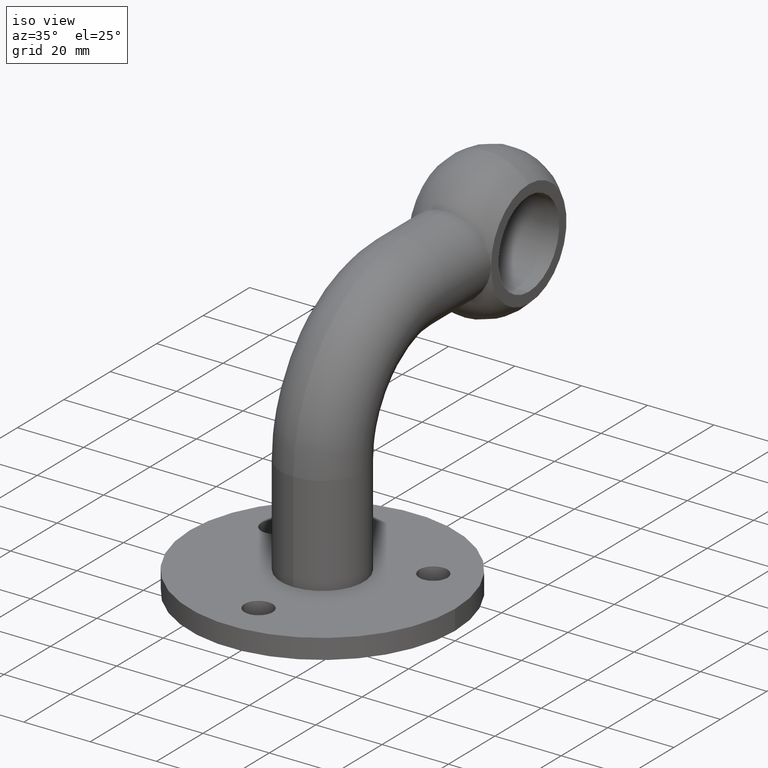
[diagram: clean part render]
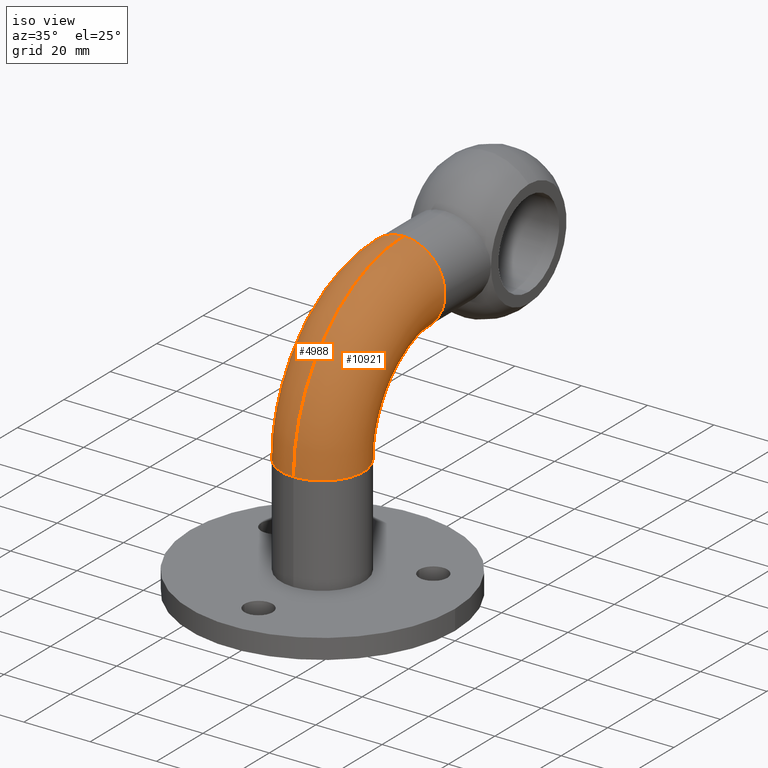
[diagram: same view with one multi-face feature highlighted, each face labeled with its STEP entity id]
A machine part, iso view. The highlighted faces form ONE feature: a constant-radius fillet chain: 2 tangent blend faces with common blend radius 12.5 mm. The faces share edges in the B-rep.
Their STEP definitions:
[1] entity #10921 (Torus):
#96 = ORIENTED_EDGE ( 'NONE', *, *, #11320, .T. ) ;
#314 = CARTESIAN_POINT ( 'NONE',  ( 1.530808498934191521E-15, 12.49999999999999289, 35.99999999999998579 ) ) ;
#677 = VERTEX_POINT ( 'NONE', #9402 ) ;
#861 = DIRECTION ( 'NONE',  ( 0.000000000000000000, 0.000000000000000000, 1.000000000000000000 ) ) ;
#873 = CARTESIAN_POINT ( 'NONE',  ( 0.000000000000000000, -12.50000000000000711, 35.99999999999998579 ) ) ;
#1842 = ORIENTED_EDGE ( 'NONE', *, *, #2493, .F. ) ;
#1978 = DIRECTION ( 'NONE',  ( -1.000000000000000000, -0.000000000000000000, 0.000000000000000000 ) ) ;
#2493 = EDGE_CURVE ( 'NONE', #10995, #5265, #2870, .T. ) ;
#2524 = AXIS2_PLACEMENT_3D ( 'NONE', #7482, #6578, #861 ) ;
#2622 = EDGE_CURVE ( 'NONE', #10995, #3476, #5107, .T. ) ;
#2792 = CIRCLE ( 'NONE', #7989, 12.50000000000000000 ) ;
#2870 = CIRCLE ( 'NONE', #9743, 12.50000000000000000 ) ;
#3476 = VERTEX_POINT ( 'NONE', #8886 ) ;
#3627 = DIRECTION ( 'NONE',  ( -1.000000000000000000, -0.000000000000000000, 0.000000000000000000 ) ) ;
#3736 = AXIS2_PLACEMENT_3D ( 'NONE', #7622, #1978, #10401 ) ;
#4051 = EDGE_LOOP ( 'NONE', ( #10801, #1842, #4670, #96 ) ) ;
#4424 = DIRECTION ( 'NONE',  ( 0.000000000000000000, 0.000000000000000000, 1.000000000000000000 ) ) ;
#4523 = DIRECTION ( 'NONE',  ( 0.000000000000000000, -1.000000000000000000, 2.165917666722776495E-16 ) ) ;
#4564 = TOROIDAL_SURFACE ( 'NONE', #3736, 35.00000000000000000, 12.50000000000000000 ) ;
#4670 = ORIENTED_EDGE ( 'NONE', *, *, #2622, .T. ) ;
#5107 = CIRCLE ( 'NONE', #2524, 22.50000000000000711 ) ;
#5265 = VERTEX_POINT ( 'NONE', #873 ) ;
#5603 = DIRECTION ( 'NONE',  ( -1.000000000000000000, 0.000000000000000000, 0.000000000000000000 ) ) ;
#6315 = CIRCLE ( 'NONE', #9468, 47.50000000000000000 ) ;
#6578 = DIRECTION ( 'NONE',  ( -1.000000000000000000, -0.000000000000000000, 0.000000000000000000 ) ) ;
#7482 = CARTESIAN_POINT ( 'NONE',  ( 1.530808498934191521E-15, 34.99999999999999289, 35.99999999999999289 ) ) ;
#7622 = CARTESIAN_POINT ( 'NONE',  ( 0.000000000000000000, 34.99999999999999289, 35.99999999999999289 ) ) ;
#7989 = AXIS2_PLACEMENT_3D ( 'NONE', #10136, #4523, #5603 ) ;
#8240 = DIRECTION ( 'NONE',  ( 0.000000000000000000, 0.000000000000000000, -1.000000000000000000 ) ) ;
#8886 = CARTESIAN_POINT ( 'NONE',  ( 1.530808498934191916E-15, 34.99999999999999289, 58.50000000000000000 ) ) ;
#9171 = DIRECTION ( 'NONE',  ( -1.000000000000000000, 0.000000000000000000, 0.000000000000000000 ) ) ;
#9397 = FACE_OUTER_BOUND ( 'NONE', #4051, .T. ) ;
#9402 = CARTESIAN_POINT ( 'NONE',  ( 0.000000000000000000, 34.99999999999999289, 83.49999999999998579 ) ) ;
#9468 = AXIS2_PLACEMENT_3D ( 'NONE', #11111, #3627, #4424 ) ;
#9743 = AXIS2_PLACEMENT_3D ( 'NONE', #11948, #8240, #9171 ) ;
#10136 = CARTESIAN_POINT ( 'NONE',  ( 0.000000000000000000, 34.99999999999999289, 71.00000000000000000 ) ) ;
#10401 = DIRECTION ( 'NONE',  ( 0.000000000000000000, 0.000000000000000000, 1.000000000000000000 ) ) ;
#10801 = ORIENTED_EDGE ( 'NONE', *, *, #12022, .F. ) ;
#10921 = ADVANCED_FACE ( 'NONE', ( #9397 ), #4564, .T. ) ;
#10995 = VERTEX_POINT ( 'NONE', #314 ) ;
#11111 = CARTESIAN_POINT ( 'NONE',  ( 0.000000000000000000, 34.99999999999999289, 35.99999999999999289 ) ) ;
#11320 = EDGE_CURVE ( 'NONE', #3476, #677, #2792, .T. ) ;
#11948 = CARTESIAN_POINT ( 'NONE',  ( 0.000000000000000000, -7.797303600201992620E-15, 35.99999999999998579 ) ) ;
#12022 = EDGE_CURVE ( 'NONE', #5265, #677, #6315, .T. ) ;
[2] entity #4988 (Torus):
#18 = DIRECTION ( 'NONE',  ( -1.000000000000000000, 0.000000000000000000, 0.000000000000000000 ) ) ;
#314 = CARTESIAN_POINT ( 'NONE',  ( 1.530808498934191521E-15, 12.49999999999999289, 35.99999999999998579 ) ) ;
#413 = ORIENTED_EDGE ( 'NONE', *, *, #5239, .T. ) ;
#677 = VERTEX_POINT ( 'NONE', #9402 ) ;
#681 = AXIS2_PLACEMENT_3D ( 'NONE', #1285, #11577, #2256 ) ;
#861 = DIRECTION ( 'NONE',  ( 0.000000000000000000, 0.000000000000000000, 1.000000000000000000 ) ) ;
#873 = CARTESIAN_POINT ( 'NONE',  ( 0.000000000000000000, -12.50000000000000711, 35.99999999999998579 ) ) ;
#1285 = CARTESIAN_POINT ( 'NONE',  ( 0.000000000000000000, -7.797303600201992620E-15, 35.99999999999998579 ) ) ;
#1849 = CARTESIAN_POINT ( 'NONE',  ( 0.000000000000000000, 34.99999999999999289, 71.00000000000000000 ) ) ;
#2256 = DIRECTION ( 'NONE',  ( -1.000000000000000000, 0.000000000000000000, 0.000000000000000000 ) ) ;
#2347 = ORIENTED_EDGE ( 'NONE', *, *, #12022, .T. ) ;
#2397 = FACE_OUTER_BOUND ( 'NONE', #10241, .T. ) ;
#2524 = AXIS2_PLACEMENT_3D ( 'NONE', #7482, #6578, #861 ) ;
#2542 = CIRCLE ( 'NONE', #7470, 12.50000000000000000 ) ;
#2622 = EDGE_CURVE ( 'NONE', #10995, #3476, #5107, .T. ) ;
#3017 = CIRCLE ( 'NONE', #681, 12.50000000000000000 ) ;
#3100 = CARTESIAN_POINT ( 'NONE',  ( 0.000000000000000000, 34.99999999999999289, 35.99999999999999289 ) ) ;
#3385 = EDGE_CURVE ( 'NONE', #5265, #10995, #3017, .T. ) ;
#3476 = VERTEX_POINT ( 'NONE', #8886 ) ;
#3627 = DIRECTION ( 'NONE',  ( -1.000000000000000000, -0.000000000000000000, 0.000000000000000000 ) ) ;
#4424 = DIRECTION ( 'NONE',  ( 0.000000000000000000, 0.000000000000000000, 1.000000000000000000 ) ) ;
#4780 = DIRECTION ( 'NONE',  ( 0.000000000000000000, -1.000000000000000000, 2.165917666722776495E-16 ) ) ;
#4988 = ADVANCED_FACE ( 'NONE', ( #2397 ), #6670, .T. ) ;
#5008 = ORIENTED_EDGE ( 'NONE', *, *, #3385, .F. ) ;
#5107 = CIRCLE ( 'NONE', #2524, 22.50000000000000711 ) ;
#5239 = EDGE_CURVE ( 'NONE', #677, #3476, #2542, .T. ) ;
#5265 = VERTEX_POINT ( 'NONE', #873 ) ;
#6315 = CIRCLE ( 'NONE', #9468, 47.50000000000000000 ) ;
#6578 = DIRECTION ( 'NONE',  ( -1.000000000000000000, -0.000000000000000000, 0.000000000000000000 ) ) ;
#6670 = TOROIDAL_SURFACE ( 'NONE', #11688, 35.00000000000000000, 12.50000000000000000 ) ;
#7470 = AXIS2_PLACEMENT_3D ( 'NONE', #1849, #4780, #18 ) ;
#7482 = CARTESIAN_POINT ( 'NONE',  ( 1.530808498934191521E-15, 34.99999999999999289, 35.99999999999999289 ) ) ;
#8886 = CARTESIAN_POINT ( 'NONE',  ( 1.530808498934191916E-15, 34.99999999999999289, 58.50000000000000000 ) ) ;
#9402 = CARTESIAN_POINT ( 'NONE',  ( 0.000000000000000000, 34.99999999999999289, 83.49999999999998579 ) ) ;
#9468 = AXIS2_PLACEMENT_3D ( 'NONE', #11111, #3627, #4424 ) ;
#9734 = DIRECTION ( 'NONE',  ( -1.000000000000000000, -0.000000000000000000, 0.000000000000000000 ) ) ;
#10241 = EDGE_LOOP ( 'NONE', ( #5008, #2347, #413, #11401 ) ) ;
#10995 = VERTEX_POINT ( 'NONE', #314 ) ;
#11111 = CARTESIAN_POINT ( 'NONE',  ( 0.000000000000000000, 34.99999999999999289, 35.99999999999999289 ) ) ;
#11401 = ORIENTED_EDGE ( 'NONE', *, *, #2622, .F. ) ;
#11577 = DIRECTION ( 'NONE',  ( 0.000000000000000000, 0.000000000000000000, -1.000000000000000000 ) ) ;
#11624 = DIRECTION ( 'NONE',  ( 0.000000000000000000, 0.000000000000000000, 1.000000000000000000 ) ) ;
#11688 = AXIS2_PLACEMENT_3D ( 'NONE', #3100, #9734, #11624 ) ;
#12022 = EDGE_CURVE ( 'NONE', #5265, #677, #6315, .T. ) ;